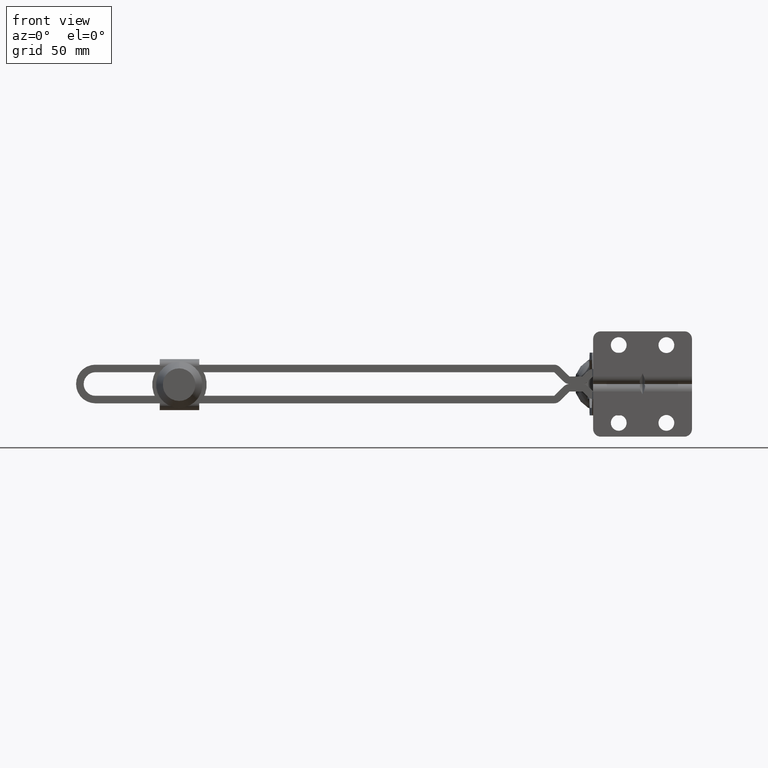
[diagram: clean part render]
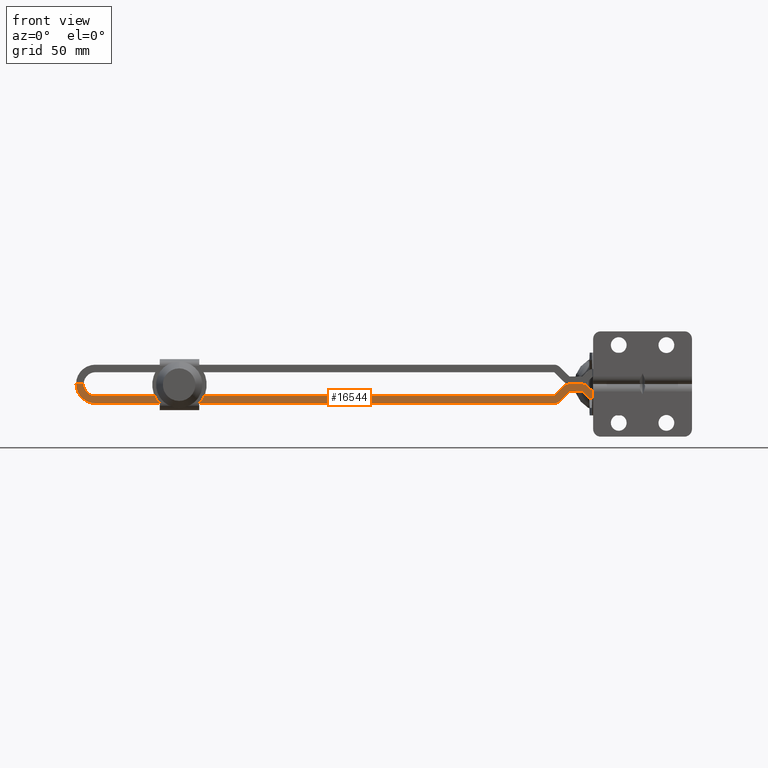
[diagram: same view with one face highlighted and labeled with its STEP entity id]
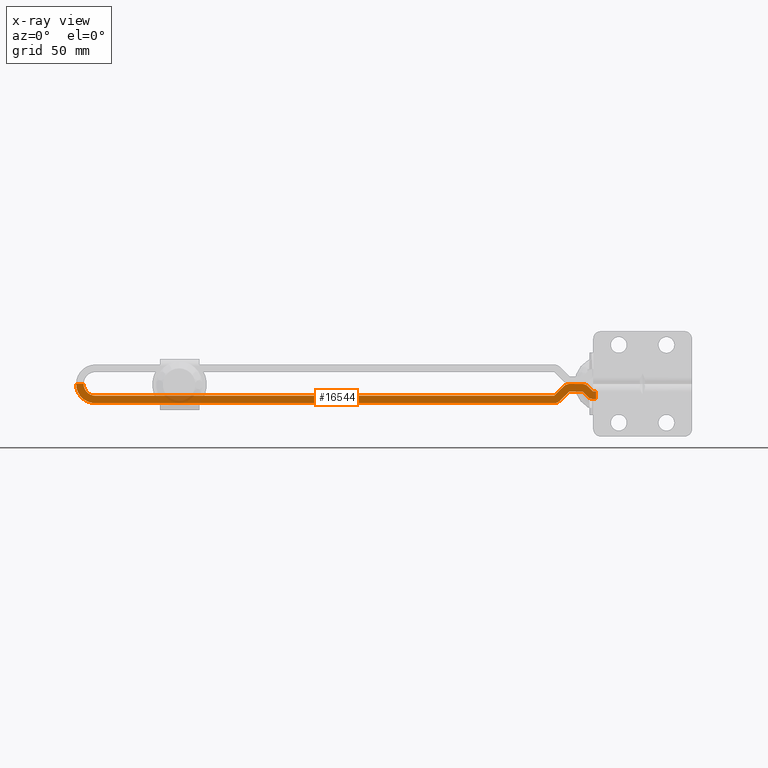
[diagram: x-ray of the same camera — body ghosted, the highlighted face saturated]
A machine part, front view. The second image highlights one B-rep face of the part: STEP entity #16544.
The next image is the same camera in x-ray: the body ghosted, the highlighted face saturated — about 4% of this face is hidden behind the body in this view.
In plain terms, the highlighted planar face has unit normal (0.0031, 1, 0).
Its self-contained STEP definition (entity closure, byte-faithful):
#16052 = VERTEX_POINT ( 'NONE', #21251 ) ;
#16092 = VERTEX_POINT ( 'NONE', #21422 ) ;
#16150 = EDGE_CURVE ( 'NONE', #16092, #16052, #21586, .T. ) ;
#16380 = VERTEX_POINT ( 'NONE', #22459 ) ;
#16381 = EDGE_CURVE ( 'NONE', #16405, #16380, #22446, .T. ) ;
#16396 = EDGE_CURVE ( 'NONE', #16408, #16405, #22485, .T. ) ;
#16405 = VERTEX_POINT ( 'NONE', #22478 ) ;
#16408 = VERTEX_POINT ( 'NONE', #22476 ) ;
#16423 = EDGE_CURVE ( 'NONE', #16452, #16444, #22524, .T. ) ;
#16424 = VERTEX_POINT ( 'NONE', #22511 ) ;
#16435 = EDGE_CURVE ( 'NONE', #16444, #16439, #22509, .T. ) ;
#16437 = EDGE_CURVE ( 'NONE', #16449, #16452, #22501, .T. ) ;
#16439 = VERTEX_POINT ( 'NONE', #22538 ) ;
#16444 = VERTEX_POINT ( 'NONE', #22542 ) ;
#16449 = VERTEX_POINT ( 'NONE', #22530 ) ;
#16451 = EDGE_CURVE ( 'NONE', #16380, #16449, #22579, .T. ) ;
#16452 = VERTEX_POINT ( 'NONE', #22541 ) ;
#16468 = VERTEX_POINT ( 'NONE', #22566 ) ;
#16471 = EDGE_CURVE ( 'NONE', #16468, #16052, #22581, .T. ) ;
#16478 = EDGE_CURVE ( 'NONE', #16498, #16468, #22607, .T. ) ;
#16488 = EDGE_CURVE ( 'NONE', #16424, #16498, #22645, .T. ) ;
#16497 = EDGE_CURVE ( 'NONE', #16439, #16424, #22103, .T. ) ;
#16498 = VERTEX_POINT ( 'NONE', #22686 ) ;
#16505 = EDGE_CURVE ( 'NONE', #16511, #16515, #22682, .T. ) ;
#16506 = VERTEX_POINT ( 'NONE', #22679 ) ;
#16511 = VERTEX_POINT ( 'NONE', #22664 ) ;
#16515 = VERTEX_POINT ( 'NONE', #22717 ) ;
#16521 = EDGE_CURVE ( 'NONE', #16525, #16511, #22701, .T. ) ;
#16524 = EDGE_CURVE ( 'NONE', #16092, #16540, #22710, .T. ) ;
#16525 = VERTEX_POINT ( 'NONE', #22663 ) ;
#16533 = EDGE_CURVE ( 'NONE', #16540, #16525, #22738, .T. ) ;
#16540 = VERTEX_POINT ( 'NONE', #22728 ) ;
#16543 = EDGE_CURVE ( 'NONE', #16506, #16619, #22721, .T. ) ;
#16544 = ADVANCED_FACE ( 'NONE', ( #22739 ), #22723, .F. ) ;
#16546 = ORIENTED_EDGE ( 'NONE', *, *, #16623, .F. ) ;
#16547 = ORIENTED_EDGE ( 'NONE', *, *, #16381, .T. ) ;
#16548 = ORIENTED_EDGE ( 'NONE', *, *, #16396, .T. ) ;
#16575 = EDGE_CURVE ( 'NONE', #16515, #16506, #22756, .T. ) ;
#16597 = ORIENTED_EDGE ( 'NONE', *, *, #16505, .T. ) ;
#16600 = ORIENTED_EDGE ( 'NONE', *, *, #16543, .T. ) ;
#16605 = ORIENTED_EDGE ( 'NONE', *, *, #16451, .T. ) ;
#16606 = ORIENTED_EDGE ( 'NONE', *, *, #16437, .T. ) ;
#16607 = ORIENTED_EDGE ( 'NONE', *, *, #16478, .T. ) ;
#16608 = ORIENTED_EDGE ( 'NONE', *, *, #16423, .T. ) ;
#16609 = ORIENTED_EDGE ( 'NONE', *, *, #16435, .T. ) ;
#16610 = ORIENTED_EDGE ( 'NONE', *, *, #16150, .F. ) ;
#16611 = ORIENTED_EDGE ( 'NONE', *, *, #16497, .T. ) ;
#16612 = ORIENTED_EDGE ( 'NONE', *, *, #16488, .T. ) ;
#16613 = ORIENTED_EDGE ( 'NONE', *, *, #16533, .T. ) ;
#16614 = ORIENTED_EDGE ( 'NONE', *, *, #16521, .T. ) ;
#16615 = ORIENTED_EDGE ( 'NONE', *, *, #16471, .T. ) ;
#16616 = ORIENTED_EDGE ( 'NONE', *, *, #16575, .T. ) ;
#16617 = ORIENTED_EDGE ( 'NONE', *, *, #16524, .T. ) ;
#16619 = VERTEX_POINT ( 'NONE', #22825 ) ;
#16621 = EDGE_LOOP ( 'NONE', ( #16546, #16548, #16547, #16605, #16606, #16608, #16609, #16611, #16612, #16607, #16615, #16610, #16617, #16613, #16614, #16597, #16616, #16600 ) ) ;
#16623 = EDGE_CURVE ( 'NONE', #16408, #16619, #22877, .T. ) ;
#21251 = CARTESIAN_POINT ( 'NONE',  ( -237.8610499163514800, 13.70873317292460300, 3.000000000000001300 ) ) ;
#21422 = CARTESIAN_POINT ( 'NONE',  ( -54.89757656742710200, 13.70873317292458000, 3.000000000000000000 ) ) ;
#21583 = DIRECTION ( 'NONE',  ( -1.000000000000000000, 1.224606353822377300E-016, 5.811453576330275800E-018 ) ) ;
#21584 = VECTOR ( 'NONE', #21583, 1000.000000000000000 ) ;
#21585 = CARTESIAN_POINT ( 'NONE',  ( -38.21490878567981800, 13.70873317292457800, 3.000000000000000000 ) ) ;
#21586 = LINE ( 'NONE', #21585, #21584 ) ;
#22102 = CARTESIAN_POINT ( 'NONE',  ( -54.89757656742710200, 10.70805132850663800, 2.999999999999999100 ) ) ;
#22103 = LINE ( 'NONE', #22102, #22339 ) ;
#22339 = VECTOR ( 'NONE', #22361, 1000.000000000000000 ) ;
#22361 = DIRECTION ( 'NONE',  ( -1.000000000000000000, 1.137750684915277500E-016, 5.811453576330275000E-018 ) ) ;
#22443 = DIRECTION ( 'NONE',  ( -0.7151516355797634700, -0.6989693399052558900, 4.156070530208461100E-018 ) ) ;
#22444 = VECTOR ( 'NONE', #22443, 1000.000000000000000 ) ;
#22445 = CARTESIAN_POINT ( 'NONE',  ( -39.39999999999999900, 9.009555065937778600, 2.999999999999999100 ) ) ;
#22446 = LINE ( 'NONE', #22445, #22444 ) ;
#22459 = CARTESIAN_POINT ( 'NONE',  ( -41.59920180783544900, 6.860116318314664100, 2.999999999999999100 ) ) ;
#22476 = CARTESIAN_POINT ( 'NONE',  ( -38.21490878567981800, 9.009555065937778600, 2.999999999999999100 ) ) ;
#22478 = CARTESIAN_POINT ( 'NONE',  ( -39.39999999999999900, 9.009555065937780300, 2.999999999999999100 ) ) ;
#22480 = DIRECTION ( 'NONE',  ( -1.000000000000000000, 0.0000000000000000000, 5.811453576330275000E-018 ) ) ;
#22481 = VECTOR ( 'NONE', #22480, 1000.000000000000000 ) ;
#22482 = CARTESIAN_POINT ( 'NONE',  ( -9.879471079761467400E-017, 9.009555065937778600, 2.999999999999999100 ) ) ;
#22485 = LINE ( 'NONE', #22482, #22481 ) ;
#22501 = LINE ( 'NONE', #22539, #22536 ) ;
#22502 = DIRECTION ( 'NONE',  ( 1.000000000000000000, 0.0000000000000000000, 0.0000000000000000000 ) ) ;
#22503 = DIRECTION ( 'NONE',  ( -5.811453576330275000E-018, 7.116742974517833400E-034, -1.000000000000000000 ) ) ;
#22504 = CARTESIAN_POINT ( 'NONE',  ( -48.89805741265986000, 9.007563899977391500, 2.999999999999999100 ) ) ;
#22505 = AXIS2_PLACEMENT_3D ( 'NONE', #22504, #22503, #22502 ) ;
#22508 = CARTESIAN_POINT ( 'NONE',  ( -54.89757656742710200, 10.70805132850663800, 2.999999999999999100 ) ) ;
#22509 = LINE ( 'NONE', #22508, #22545 ) ;
#22511 = CARTESIAN_POINT ( 'NONE',  ( -237.8610499163514800, 10.70805132850666500, 2.999999999999999100 ) ) ;
#22524 = CIRCLE ( 'NONE', #22505, 3.002786367008472500 ) ;
#22530 = CARTESIAN_POINT ( 'NONE',  ( -43.69805741265986400, 6.004777532968889300, 3.000000000000000000 ) ) ;
#22535 = DIRECTION ( 'NONE',  ( -1.000000000000000000, 1.224606353822377300E-016, 5.811453576330275800E-018 ) ) ;
#22536 = VECTOR ( 'NONE', #22535, 1000.000000000000000 ) ;
#22538 = CARTESIAN_POINT ( 'NONE',  ( -54.89757656742710200, 10.70805132850663800, 2.999999999999999100 ) ) ;
#22539 = CARTESIAN_POINT ( 'NONE',  ( -38.21490878567981800, 6.004777532968889300, 3.000000000000000000 ) ) ;
#22541 = CARTESIAN_POINT ( 'NONE',  ( -48.89805741265986000, 6.004777532968890200, 3.000000000000000000 ) ) ;
#22542 = CARTESIAN_POINT ( 'NONE',  ( -51.00686301471152000, 6.869886445671554000, 2.999999999999999100 ) ) ;
#22544 = DIRECTION ( 'NONE',  ( -0.7118979484496242800, 0.7022829280234683700, 4.137161878499755700E-018 ) ) ;
#22545 = VECTOR ( 'NONE', #22544, 1000.000000000000000 ) ;
#22566 = CARTESIAN_POINT ( 'NONE',  ( -245.5617317607693900, 6.008051328506659200, 2.999999999999999100 ) ) ;
#22573 = AXIS2_PLACEMENT_3D ( 'NONE', #22615, #22620, #22612 ) ;
#22575 = DIRECTION ( 'NONE',  ( 1.000000000000000000, 0.0000000000000000000, 0.0000000000000000000 ) ) ;
#22576 = DIRECTION ( 'NONE',  ( -5.811453576330275000E-018, 7.116742974517833400E-034, -1.000000000000000000 ) ) ;
#22577 = CARTESIAN_POINT ( 'NONE',  ( -43.69805741265986400, 9.007563899977391500, 2.999999999999999100 ) ) ;
#22578 = AXIS2_PLACEMENT_3D ( 'NONE', #22577, #22576, #22575 ) ;
#22579 = CIRCLE ( 'NONE', #22578, 3.002786367008472500 ) ;
#22581 = CIRCLE ( 'NONE', #22573, 7.700681844417911000 ) ;
#22602 = CARTESIAN_POINT ( 'NONE',  ( -237.8610499163514800, 6.008051328506660100, 2.999999999999999100 ) ) ;
#22604 = DIRECTION ( 'NONE',  ( -1.000000000000000000, 0.0000000000000000000, 5.811453576330275000E-018 ) ) ;
#22606 = CARTESIAN_POINT ( 'NONE',  ( -242.5610499163514900, 6.008051328506660100, 2.999999999999999100 ) ) ;
#22607 = LINE ( 'NONE', #22606, #22610 ) ;
#22610 = VECTOR ( 'NONE', #22604, 1000.000000000000000 ) ;
#22612 = DIRECTION ( 'NONE',  ( 1.000000000000000000, 0.0000000000000000000, 0.0000000000000000000 ) ) ;
#22615 = CARTESIAN_POINT ( 'NONE',  ( -237.8610499163514800, 6.008051328506660100, 2.999999999999999100 ) ) ;
#22620 = DIRECTION ( 'NONE',  ( -5.811453576330275000E-018, 7.116742974517833400E-034, -1.000000000000000000 ) ) ;
#22637 = DIRECTION ( 'NONE',  ( 1.000000000000000000, 0.0000000000000000000, 0.0000000000000000000 ) ) ;
#22638 = DIRECTION ( 'NONE',  ( 5.811453576330275000E-018, -7.116742974517833400E-034, 1.000000000000000000 ) ) ;
#22645 = CIRCLE ( 'NONE', #22647, 4.700000000000009900 ) ;
#22647 = AXIS2_PLACEMENT_3D ( 'NONE', #22602, #22638, #22637 ) ;
#22663 = CARTESIAN_POINT ( 'NONE',  ( -48.89805741265986000, 9.007563899977391500, 2.999999999999999100 ) ) ;
#22664 = CARTESIAN_POINT ( 'NONE',  ( -43.69805741265986400, 9.007563899977391500, 2.999999999999999100 ) ) ;
#22672 = DIRECTION ( 'NONE',  ( 0.7157843915221172600, 0.6983213478430344600, -4.159747761992596800E-018 ) ) ;
#22673 = VECTOR ( 'NONE', #22672, 1000.000000000000100 ) ;
#22674 = CARTESIAN_POINT ( 'NONE',  ( -43.69805741265986400, 9.007563899977391500, 2.999999999999999100 ) ) ;
#22679 = CARTESIAN_POINT ( 'NONE',  ( -39.39999999999999900, 12.00955506593778400, 2.999999999999999600 ) ) ;
#22682 = LINE ( 'NONE', #22674, #22673 ) ;
#22686 = CARTESIAN_POINT ( 'NONE',  ( -242.5610499163514900, 6.008051328506660100, 2.999999999999999100 ) ) ;
#22687 = DIRECTION ( 'NONE',  ( 1.000000000000000000, 0.0000000000000000000, 0.0000000000000000000 ) ) ;
#22688 = DIRECTION ( 'NONE',  ( -5.811453576330275000E-018, 7.116742974517833400E-034, -1.000000000000000000 ) ) ;
#22698 = DIRECTION ( 'NONE',  ( 1.000000000000000000, 8.340016711426962700E-017, -5.811453576330275000E-018 ) ) ;
#22699 = VECTOR ( 'NONE', #22698, 1000.000000000000000 ) ;
#22700 = CARTESIAN_POINT ( 'NONE',  ( -43.69805741265986400, 9.007563899977391500, 2.999999999999999100 ) ) ;
#22701 = LINE ( 'NONE', #22700, #22699 ) ;
#22709 = CARTESIAN_POINT ( 'NONE',  ( -54.89757656742710200, 10.70805132850663800, 2.999999999999999100 ) ) ;
#22710 = CIRCLE ( 'NONE', #22718, 3.000681844417915700 ) ;
#22717 = CARTESIAN_POINT ( 'NONE',  ( -41.49496404352910900, 11.15690824050413400, 2.999999999999999100 ) ) ;
#22718 = AXIS2_PLACEMENT_3D ( 'NONE', #22709, #22688, #22687 ) ;
#22721 = LINE ( 'NONE', #22722, #22779 ) ;
#22722 = CARTESIAN_POINT ( 'NONE',  ( -9.879471079761467400E-017, 12.00955506593777900, 2.999999999999999100 ) ) ;
#22723 = PLANE ( 'NONE',  #22781 ) ;
#22728 = CARTESIAN_POINT ( 'NONE',  ( -52.79107158793985400, 12.84504180644862200, 2.999999999999999100 ) ) ;
#22732 = CARTESIAN_POINT ( 'NONE',  ( -38.21490878567981800, 6.004777532968889300, 3.000000000000000000 ) ) ;
#22735 = DIRECTION ( 'NONE',  ( 0.7121682966547650000, -0.7020087729080389800, -4.138732994543375400E-018 ) ) ;
#22736 = VECTOR ( 'NONE', #22735, 1000.000000000000000 ) ;
#22737 = CARTESIAN_POINT ( 'NONE',  ( -48.89805741265986000, 9.007563899977391500, 2.999999999999999100 ) ) ;
#22738 = LINE ( 'NONE', #22737, #22736 ) ;
#22739 = FACE_OUTER_BOUND ( 'NONE', #16621, .T. ) ;
#22756 = CIRCLE ( 'NONE', #22812, 3.000000000000009800 ) ;
#22774 = DIRECTION ( 'NONE',  ( 1.000000000000000000, 0.0000000000000000000, -5.811453576330275000E-018 ) ) ;
#22775 = DIRECTION ( 'NONE',  ( 5.811453576330275000E-018, -7.116742974517833400E-034, 1.000000000000000000 ) ) ;
#22778 = DIRECTION ( 'NONE',  ( 1.000000000000000000, -1.224606353822377300E-016, -5.811453576330275000E-018 ) ) ;
#22779 = VECTOR ( 'NONE', #22778, 1000.000000000000000 ) ;
#22781 = AXIS2_PLACEMENT_3D ( 'NONE', #22732, #22775, #22774 ) ;
#22797 = DIRECTION ( 'NONE',  ( 1.000000000000000000, 0.0000000000000000000, 0.0000000000000000000 ) ) ;
#22802 = CARTESIAN_POINT ( 'NONE',  ( -39.39999999999999900, 9.009555065937778600, 2.999999999999999100 ) ) ;
#22812 = AXIS2_PLACEMENT_3D ( 'NONE', #22802, #22818, #22797 ) ;
#22818 = DIRECTION ( 'NONE',  ( -5.811453576330275000E-018, 7.116742974517833400E-034, -1.000000000000000000 ) ) ;
#22825 = CARTESIAN_POINT ( 'NONE',  ( -38.21490878567981800, 12.00955506593778400, 2.999999999999999100 ) ) ;
#22874 = DIRECTION ( 'NONE',  ( 1.224606353822377300E-016, 1.000000000000000000, 0.0000000000000000000 ) ) ;
#22875 = VECTOR ( 'NONE', #22874, 1000.000000000000000 ) ;
#22876 = CARTESIAN_POINT ( 'NONE',  ( -38.21490878567981800, 6.004777532968889300, 2.999999999999999100 ) ) ;
#22877 = LINE ( 'NONE', #22876, #22875 ) ;